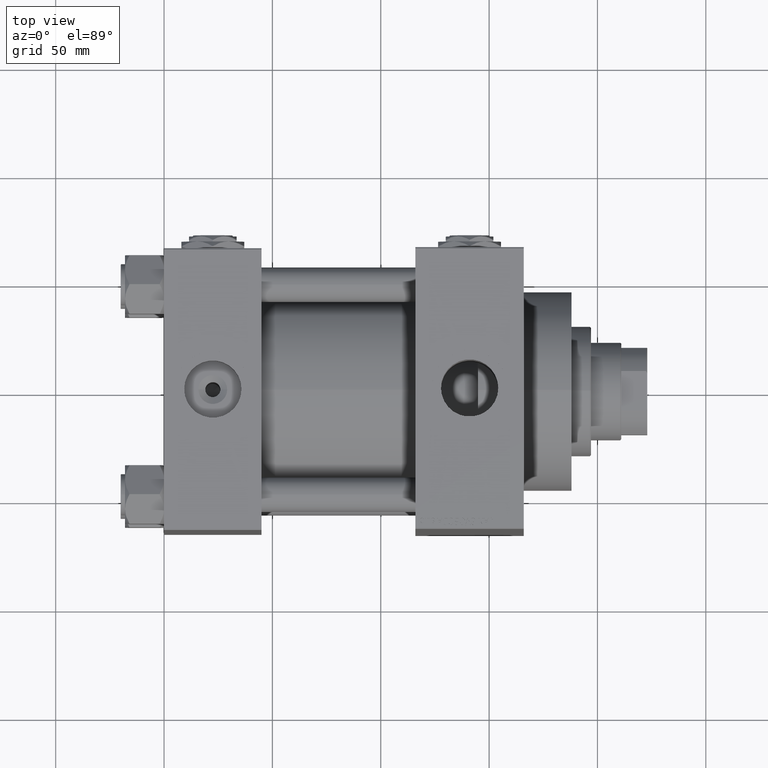
[diagram: clean part render]
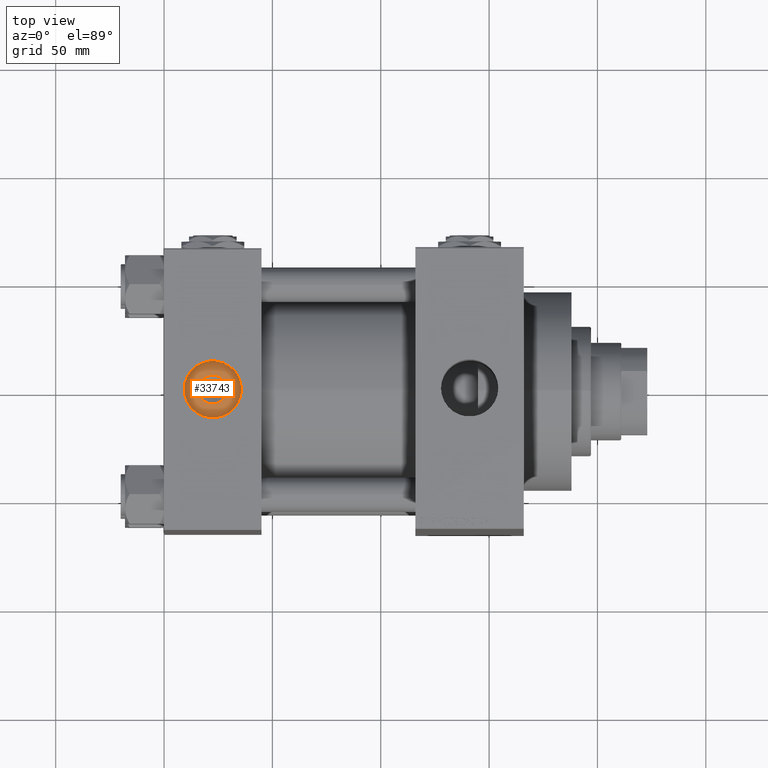
[diagram: same view with one face highlighted and labeled with its STEP entity id]
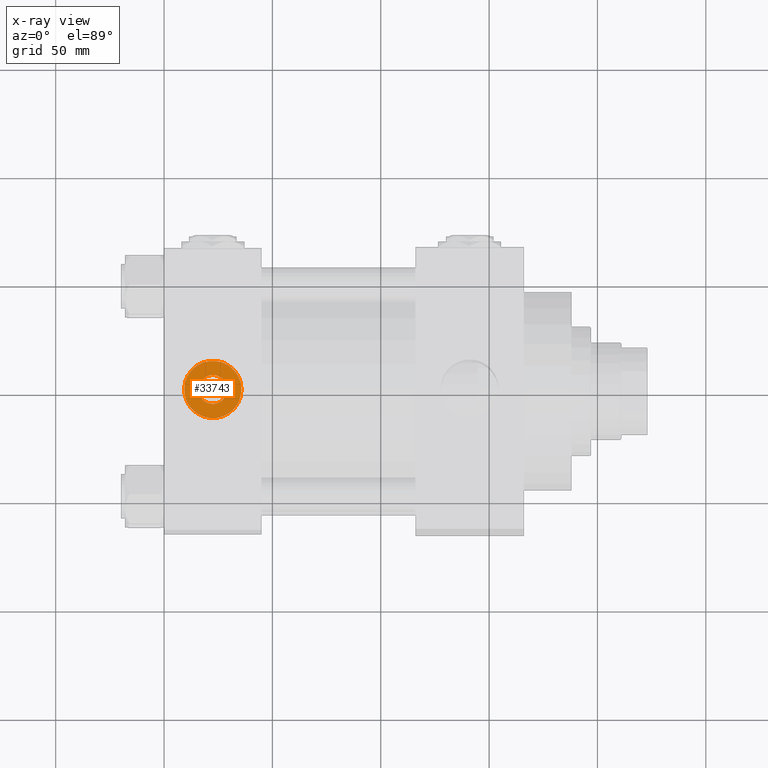
[diagram: x-ray of the same camera — body ghosted, the highlighted face saturated]
A machine part, top view. The second image highlights one B-rep face of the part: STEP entity #33743.
The next image is the same camera in x-ray: the body ghosted, the highlighted face saturated — about 0% of this face is hidden behind the body in this view.
In plain terms, the highlighted planar face has unit normal (0, 0, 1).
Its self-contained STEP definition (entity closure, byte-faithful):
#971 = CIRCLE ( 'NONE', #9817, 13.22000000000000242 ) ;
#4123 = DIRECTION ( 'NONE',  ( 0.000000000000000000, 0.000000000000000000, 1.000000000000000000 ) ) ;
#5641 = FACE_OUTER_BOUND ( 'NONE', #40776, .T. ) ;
#7813 = VERTEX_POINT ( 'NONE', #45031 ) ;
#9502 = CARTESIAN_POINT ( 'NONE',  ( 22.50000000000000000, -1.561251128379126385E-14, 54.19999999999999574 ) ) ;
#9817 = AXIS2_PLACEMENT_3D ( 'NONE', #23755, #4123, #46663 ) ;
#11848 = EDGE_CURVE ( 'NONE', #21292, #7813, #27459, .T. ) ;
#12328 = AXIS2_PLACEMENT_3D ( 'NONE', #48692, #43922, #48187 ) ;
#14897 = CIRCLE ( 'NONE', #44611, 6.640000000000090274 ) ;
#15272 = CARTESIAN_POINT ( 'NONE',  ( 22.50000000000000000, -1.561251128379126385E-14, 54.19999999999999574 ) ) ;
#16808 = DIRECTION ( 'NONE',  ( -0.000000000000000000, -0.000000000000000000, -1.000000000000000000 ) ) ;
#17819 = EDGE_CURVE ( 'NONE', #7813, #21292, #971, .T. ) ;
#18204 = PLANE ( 'NONE',  #12328 ) ;
#18480 = CARTESIAN_POINT ( 'NONE',  ( 15.85999999999990884, -1.479934580915741149E-14, 54.19999999999999574 ) ) ;
#18818 = EDGE_CURVE ( 'NONE', #45961, #29848, #23528, .T. ) ;
#20208 = EDGE_LOOP ( 'NONE', ( #20660, #48407 ) ) ;
#20660 = ORIENTED_EDGE ( 'NONE', *, *, #18818, .T. ) ;
#21292 = VERTEX_POINT ( 'NONE', #38919 ) ;
#22717 = ORIENTED_EDGE ( 'NONE', *, *, #17819, .T. ) ;
#23528 = CIRCLE ( 'NONE', #46037, 6.640000000000090274 ) ;
#23755 = CARTESIAN_POINT ( 'NONE',  ( 22.50000000000000000, -1.561251128379126385E-14, 54.19999999999999574 ) ) ;
#27200 = ORIENTED_EDGE ( 'NONE', *, *, #11848, .T. ) ;
#27459 = CIRCLE ( 'NONE', #32267, 13.22000000000000242 ) ;
#27968 = DIRECTION ( 'NONE',  ( -0.000000000000000000, -0.000000000000000000, -1.000000000000000000 ) ) ;
#29848 = VERTEX_POINT ( 'NONE', #18480 ) ;
#31250 = CARTESIAN_POINT ( 'NONE',  ( 22.50000000000000000, -1.561251128379126385E-14, 54.19999999999999574 ) ) ;
#32188 = DIRECTION ( 'NONE',  ( 1.000000000000000000, 0.000000000000000000, 0.000000000000000000 ) ) ;
#32267 = AXIS2_PLACEMENT_3D ( 'NONE', #15272, #37687, #44992 ) ;
#33743 = ADVANCED_FACE ( 'NONE', ( #40140, #5641 ), #18204, .T. ) ;
#36270 = EDGE_CURVE ( 'NONE', #29848, #45961, #14897, .T. ) ;
#37687 = DIRECTION ( 'NONE',  ( 0.000000000000000000, 0.000000000000000000, 1.000000000000000000 ) ) ;
#38801 = DIRECTION ( 'NONE',  ( 1.000000000000000000, 0.000000000000000000, 0.000000000000000000 ) ) ;
#38919 = CARTESIAN_POINT ( 'NONE',  ( 35.71999999999999886, -1.561251128379126385E-14, 54.19999999999999574 ) ) ;
#40140 = FACE_BOUND ( 'NONE', #20208, .T. ) ;
#40776 = EDGE_LOOP ( 'NONE', ( #27200, #22717 ) ) ;
#43922 = DIRECTION ( 'NONE',  ( 0.000000000000000000, 0.000000000000000000, 1.000000000000000000 ) ) ;
#44368 = CARTESIAN_POINT ( 'NONE',  ( 29.14000000000008939, -1.561251128379126385E-14, 54.19999999999999574 ) ) ;
#44611 = AXIS2_PLACEMENT_3D ( 'NONE', #9502, #16808, #32188 ) ;
#44992 = DIRECTION ( 'NONE',  ( 1.000000000000000000, 0.000000000000000000, 0.000000000000000000 ) ) ;
#45031 = CARTESIAN_POINT ( 'NONE',  ( 9.279999999999994031, -1.399352821531846349E-14, 54.19999999999999574 ) ) ;
#45961 = VERTEX_POINT ( 'NONE', #44368 ) ;
#46037 = AXIS2_PLACEMENT_3D ( 'NONE', #31250, #27968, #38801 ) ;
#46663 = DIRECTION ( 'NONE',  ( 1.000000000000000000, 0.000000000000000000, 0.000000000000000000 ) ) ;
#48187 = DIRECTION ( 'NONE',  ( 1.000000000000000000, 0.000000000000000000, -0.000000000000000000 ) ) ;
#48407 = ORIENTED_EDGE ( 'NONE', *, *, #36270, .T. ) ;
#48692 = CARTESIAN_POINT ( 'NONE',  ( 22.50000000000000000, -1.561251128379126385E-14, 54.19999999999999574 ) ) ;